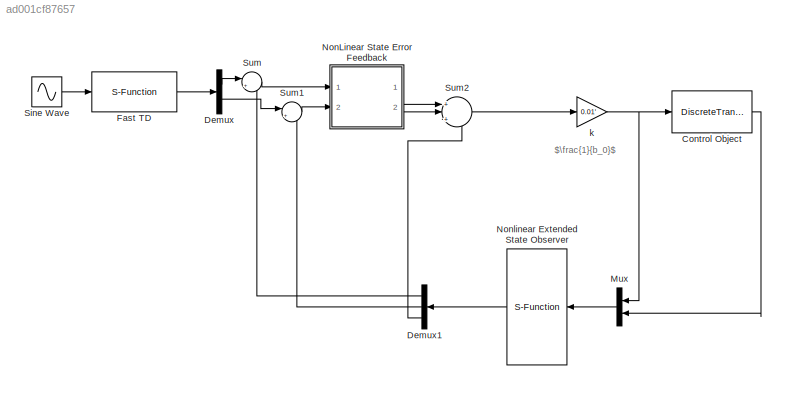
MODEL slx_ad001cf87657
KIND model
CONFIG AbsTol = auto
CONFIG EnableMultiTasking = off
CONFIG FixedStep = auto
CONFIG MaxStep = auto
CONFIG MinStep = auto
CONFIG RelTol = 1e-3
CONFIG SampleTimeConstraint = Unconstrained
CONFIG Solver = VariableStepAuto
CONFIG SolverName = VariableStepAuto
CONFIG StartTime = 0.0
CONFIG StopTime = 10.0
BLOCK [DiscreteTransferFcn] Control Object
  Denominator = [1.0000   -0.9995]
  InputPortMap = u0
  Numerator = [ 0    0.0167]
  Ports = [1, 1]
BLOCK [Demux] Demux
  DisplayOption = bar
  Outputs = 2
  Ports = [1, 2]
BLOCK [Demux] Demux1
  DisplayOption = bar
  Outputs = 3
  Ports = [1, 3]
BLOCK [S-Function] Fast TD
  EnableBusSupport = off
  FunctionName = FTD
  Parameters = 1E-3,1E-2,1000
  Ports = [1, 1]
  SFcnIsStateOwnerBlock = off
  SFunctionDeploymentMode = off
BLOCK [Mux] Mux
  DisplayOption = bar
  Inputs = 2
  Ports = [2, 1]
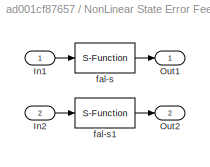
BLOCK [SubSystem] NonLinear State Error Feedback
  Ports = [2, 2]
  RequestExecContextInheritance = off
BLOCK [Inport] NonLinear State Error Feedback/In1
  IconDisplay = Port number
BLOCK [Inport] NonLinear State Error Feedback/In2
  IconDisplay = Port number
  Port = 2
BLOCK [Outport] NonLinear State Error Feedback/Out1
  IconDisplay = Port number
BLOCK [Outport] NonLinear State Error Feedback/Out2
  IconDisplay = Port number
  Port = 2
BLOCK [S-Function] NonLinear State Error Feedback/fal-s
  EnableBusSupport = off
  FunctionName = fal_s
  Parameters = .5,0.5
  Ports = [1, 1]
  SFcnIsStateOwnerBlock = off
  SFunctionDeploymentMode = off
BLOCK [S-Function] NonLinear State Error Feedback/fal-s1
  EnableBusSupport = off
  FunctionName = fal_s
  Parameters = 1,1
  Ports = [1, 1]
  SFcnIsStateOwnerBlock = off
  SFunctionDeploymentMode = off
BLOCK [S-Function] Nonlinear Extended State Observer
  EnableBusSupport = off
  FunctionName = NLESO
  Parameters = 0.1,0.5,10,100,500,50
  Ports = [1, 1]
  SFcnIsStateOwnerBlock = off
  SFunctionDeploymentMode = off
BLOCK [Sin] Sine Wave
  Ports = [0, 1]
  SampleTime = 0
BLOCK [Sum] Sum
  IconShape = round
  InputSameDT = off
  Inputs = |+-
  OutDataTypeStr = Inherit: Inherit via internal rule
  Ports = [2, 1]
  SaturateOnIntegerOverflow = off
BLOCK [Sum] Sum1
  IconShape = round
  InputSameDT = off
  Inputs = |+-
  OutDataTypeStr = Inherit: Inherit via internal rule
  Ports = [2, 1]
  SaturateOnIntegerOverflow = off
BLOCK [Sum] Sum2
  IconShape = round
  InputSameDT = off
  Inputs = +|+|-
  OutDataTypeStr = Inherit: Inherit via internal rule
  Ports = [3, 1]
  SaturateOnIntegerOverflow = off
BLOCK [Gain] k
  Gain = 0.01'
  OutDataTypeStr = Inherit: Inherit via internal rule
  ParamDataTypeStr = Inherit: Inherit via internal rule
  SaturateOnIntegerOverflow = off
ANNOTATION (root): $\frac{1}{b_0}$
LINE Control Object:1 -> Mux:2
LINE Demux1:1 -> Sum:2
LINE Demux1:2 -> Sum1:2
LINE Demux1:3 -> Sum2:3
LINE Demux:1 -> Sum:1
LINE Demux:2 -> Sum1:1
LINE Fast TD:1 -> Demux:1
LINE Mux:1 -> Nonlinear Extended State Observer:1
LINE NonLinear State Error Feedback/In1:1 -> NonLinear State Error Feedback/fal-s:1
LINE NonLinear State Error Feedback/In2:1 -> NonLinear State Error Feedback/fal-s1:1
LINE NonLinear State Error Feedback/fal-s1:1 -> NonLinear State Error Feedback/Out2:1
LINE NonLinear State Error Feedback/fal-s:1 -> NonLinear State Error Feedback/Out1:1
LINE NonLinear State Error Feedback:1 -> Sum2:1
LINE NonLinear State Error Feedback:2 -> Sum2:2
LINE Nonlinear Extended State Observer:1 -> Demux1:1
LINE Sine Wave:1 -> Fast TD:1
LINE Sum1:1 -> NonLinear State Error Feedback:2
LINE Sum2:1 -> k:1
LINE Sum:1 -> NonLinear State Error Feedback:1
NET k:1 -> Control Object:1, Mux:1
note: NET lines group one-source signal fan-out (src -> all destinations, sorted); 1:1 wires keep LINE
